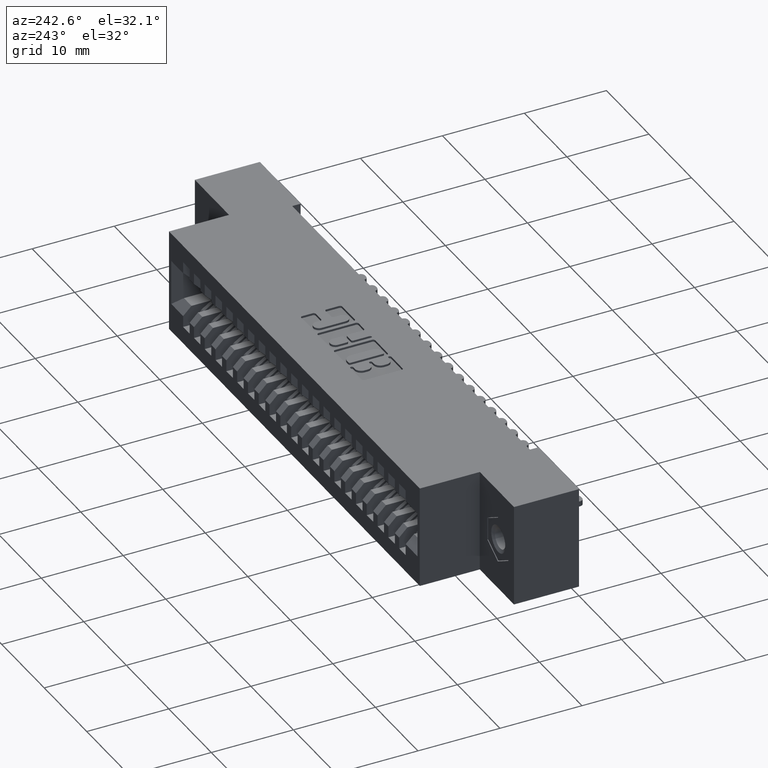
[diagram: clean part render]
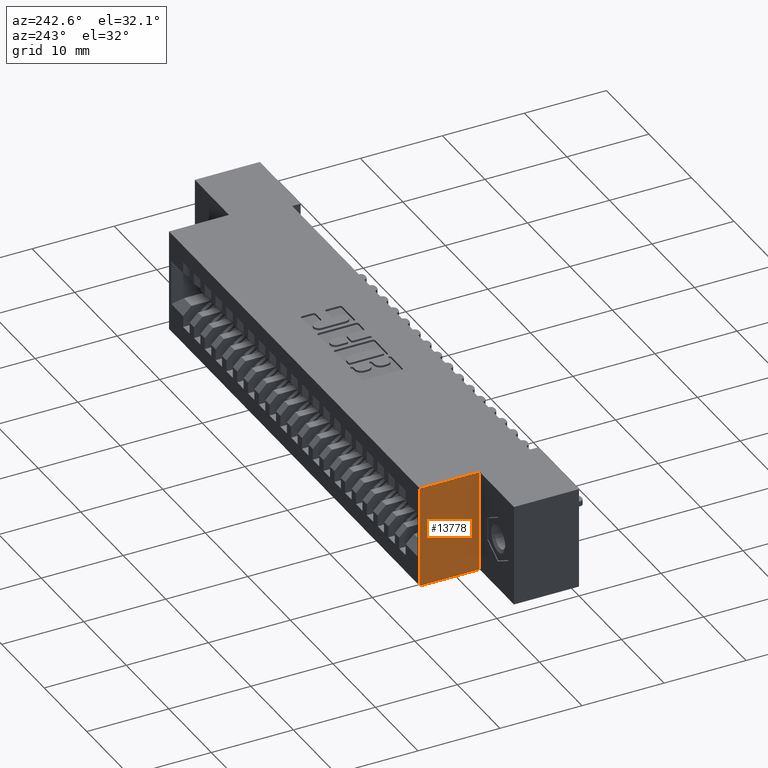
[diagram: same view with one face highlighted and labeled with its STEP entity id]
A machine part, auxiliary view. The second image highlights one B-rep face of the part: STEP entity #13778.
In plain terms, the highlighted planar face has unit normal (1, 0, -0).
Its self-contained STEP definition (entity closure, byte-faithful):
#7 = LINE ( 'NONE', #4227, #8370 ) ;
#1004 = EDGE_CURVE ( 'NONE', #9036, #5440, #3616, .T. ) ;
#1596 = DIRECTION ( 'NONE',  ( -1.393799996767481300E-016, -0.0000000000000000000, -1.000000000000000000 ) ) ;
#2000 = EDGE_LOOP ( 'NONE', ( #6795, #8992, #6201, #8409 ) ) ;
#2735 = AXIS2_PLACEMENT_3D ( 'NONE', #12625, #15181, #7461 ) ;
#2953 = CARTESIAN_POINT ( 'NONE',  ( 0.3165000000000000000, 0.3120000000000000000, -0.4899999999999999900 ) ) ;
#3616 = LINE ( 'NONE', #16400, #6458 ) ;
#4005 = EDGE_CURVE ( 'NONE', #8109, #13406, #10521, .T. ) ;
#4227 = CARTESIAN_POINT ( 'NONE',  ( 0.3165000000000001100, 0.3120000000000000000, 0.0000000000000000000 ) ) ;
#4309 = FACE_OUTER_BOUND ( 'NONE', #2000, .T. ) ;
#5440 = VERTEX_POINT ( 'NONE', #2953 ) ;
#6073 = CARTESIAN_POINT ( 'NONE',  ( 0.3165000000000001100, 0.5999999999999999800, 0.0000000000000000000 ) ) ;
#6201 = ORIENTED_EDGE ( 'NONE', *, *, #1004, .F. ) ;
#6458 = VECTOR ( 'NONE', #11339, 39.37007874015748100 ) ;
#6711 = CARTESIAN_POINT ( 'NONE',  ( 0.3165000000000000000, 0.5999999999999999800, -0.4899999999999999900 ) ) ;
#6795 = ORIENTED_EDGE ( 'NONE', *, *, #4005, .T. ) ;
#6938 = CARTESIAN_POINT ( 'NONE',  ( 0.3165000000000001100, 0.3120000000000000000, 0.0000000000000000000 ) ) ;
#7298 = DIRECTION ( 'NONE',  ( -0.0000000000000000000, 1.000000000000000000, -0.0000000000000000000 ) ) ;
#7461 = DIRECTION ( 'NONE',  ( -1.393799996767481100E-016, 0.0000000000000000000, -1.000000000000000000 ) ) ;
#8109 = VERTEX_POINT ( 'NONE', #6073 ) ;
#8370 = VECTOR ( 'NONE', #11840, 39.37007874015748100 ) ;
#8409 = ORIENTED_EDGE ( 'NONE', *, *, #13283, .T. ) ;
#8992 = ORIENTED_EDGE ( 'NONE', *, *, #10395, .F. ) ;
#9036 = VERTEX_POINT ( 'NONE', #6938 ) ;
#10395 = EDGE_CURVE ( 'NONE', #5440, #13406, #15113, .T. ) ;
#10521 = LINE ( 'NONE', #6711, #14360 ) ;
#10966 = CARTESIAN_POINT ( 'NONE',  ( 0.3165000000000000000, 0.3120000000000000000, -0.4899999999999999900 ) ) ;
#11312 = PLANE ( 'NONE',  #2735 ) ;
#11339 = DIRECTION ( 'NONE',  ( -1.393799996767481300E-016, -0.0000000000000000000, -1.000000000000000000 ) ) ;
#11840 = DIRECTION ( 'NONE',  ( -0.0000000000000000000, 1.000000000000000000, -0.0000000000000000000 ) ) ;
#12321 = VECTOR ( 'NONE', #7298, 39.37007874015748100 ) ;
#12625 = CARTESIAN_POINT ( 'NONE',  ( 0.3165000000000000000, 0.3120000000000000000, -0.4899999999999999900 ) ) ;
#13071 = CARTESIAN_POINT ( 'NONE',  ( 0.3165000000000000000, 0.5999999999999999800, -0.4899999999999999900 ) ) ;
#13283 = EDGE_CURVE ( 'NONE', #9036, #8109, #7, .T. ) ;
#13406 = VERTEX_POINT ( 'NONE', #13071 ) ;
#13778 = ADVANCED_FACE ( 'NONE', ( #4309 ), #11312, .F. ) ;
#14360 = VECTOR ( 'NONE', #1596, 39.37007874015748100 ) ;
#15113 = LINE ( 'NONE', #10966, #12321 ) ;
#15181 = DIRECTION ( 'NONE',  ( 1.000000000000000000, 0.0000000000000000000, -1.393799996767481100E-016 ) ) ;
#16400 = CARTESIAN_POINT ( 'NONE',  ( 0.3165000000000000000, 0.3120000000000000000, -0.4899999999999999900 ) ) ;